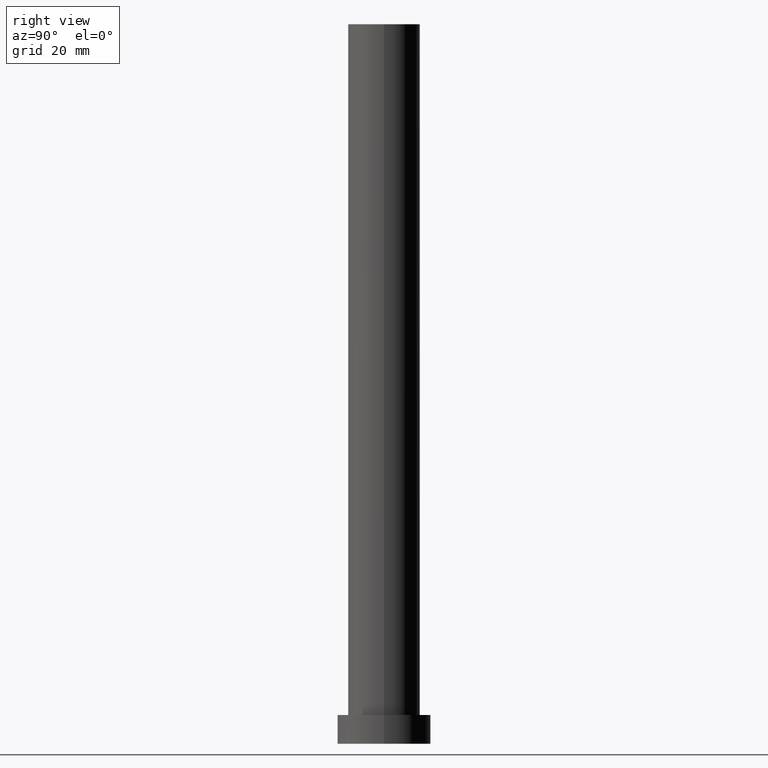
[diagram: clean part render]
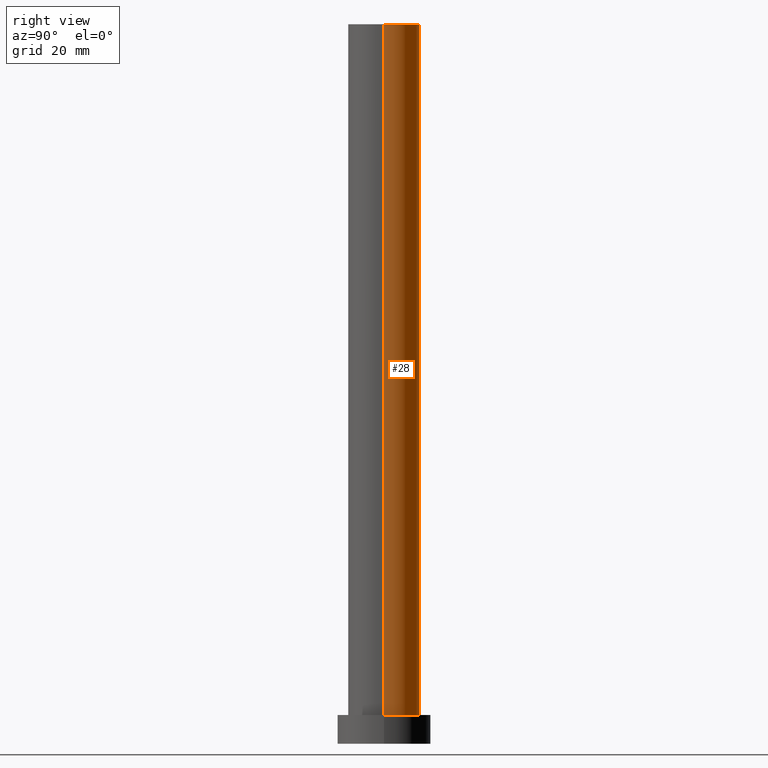
[diagram: same view with one face highlighted and labeled with its STEP entity id]
A machine part, right view. The second image highlights one B-rep face of the part: STEP entity #28.
In plain terms, the highlighted cylindrical surface (edge-blend (fillet) strip) has radius 10 mm, axis along (-0, -0, -1).
Its self-contained STEP definition (entity closure, byte-faithful):
#2 = ORIENTED_EDGE ( 'NONE', *, *, #141, .T. ) ;
#3 = EDGE_CURVE ( 'NONE', #122, #185, #15, .T. ) ;
#5 = DIRECTION ( 'NONE',  ( -0.000000000000000000, -0.000000000000000000, -1.000000000000000000 ) ) ;
#15 = CIRCLE ( 'NONE', #143, 10.00000000000000000 ) ;
#18 = VECTOR ( 'NONE', #79, 1000.000000000000000 ) ;
#20 = CARTESIAN_POINT ( 'NONE',  ( 10.00000000000000000, 1.224646799147353256E-15, 200.0000000000000000 ) ) ;
#28 = ADVANCED_FACE ( 'NONE', ( #133 ), #37, .T. ) ;
#32 = EDGE_CURVE ( 'NONE', #238, #185, #95, .T. ) ;
#36 = AXIS2_PLACEMENT_3D ( 'NONE', #110, #111, #193 ) ;
#37 = CYLINDRICAL_SURFACE ( 'NONE', #36, 10.00000000000000000 ) ;
#50 = ORIENTED_EDGE ( 'NONE', *, *, #32, .F. ) ;
#57 = EDGE_CURVE ( 'NONE', #126, #238, #157, .T. ) ;
#66 = CARTESIAN_POINT ( 'NONE',  ( 10.00000000000000000, 1.224646799147353256E-15, 8.000000000000000000 ) ) ;
#79 = DIRECTION ( 'NONE',  ( -0.000000000000000000, -0.000000000000000000, -1.000000000000000000 ) ) ;
#82 = DIRECTION ( 'NONE',  ( 1.000000000000000000, 0.000000000000000000, 0.000000000000000000 ) ) ;
#95 = LINE ( 'NONE', #114, #18 ) ;
#96 = CARTESIAN_POINT ( 'NONE',  ( 0.000000000000000000, 0.000000000000000000, 200.0000000000000000 ) ) ;
#102 = CARTESIAN_POINT ( 'NONE',  ( 0.000000000000000000, 0.000000000000000000, 8.000000000000000000 ) ) ;
#103 = CARTESIAN_POINT ( 'NONE',  ( 10.00000000000000000, 1.224646799147353256E-15, 200.0000000000000000 ) ) ;
#110 = CARTESIAN_POINT ( 'NONE',  ( 0.000000000000000000, 0.000000000000000000, 200.0000000000000000 ) ) ;
#111 = DIRECTION ( 'NONE',  ( -0.000000000000000000, -0.000000000000000000, -1.000000000000000000 ) ) ;
#114 = CARTESIAN_POINT ( 'NONE',  ( -10.00000000000000000, 0.000000000000000000, 200.0000000000000000 ) ) ;
#122 = VERTEX_POINT ( 'NONE', #66 ) ;
#126 = VERTEX_POINT ( 'NONE', #20 ) ;
#133 = FACE_OUTER_BOUND ( 'NONE', #168, .T. ) ;
#141 = EDGE_CURVE ( 'NONE', #126, #122, #239, .T. ) ;
#143 = AXIS2_PLACEMENT_3D ( 'NONE', #102, #153, #175 ) ;
#153 = DIRECTION ( 'NONE',  ( 0.000000000000000000, 0.000000000000000000, 1.000000000000000000 ) ) ;
#157 = CIRCLE ( 'NONE', #178, 10.00000000000000000 ) ;
#168 = EDGE_LOOP ( 'NONE', ( #224, #2, #244, #50 ) ) ;
#175 = DIRECTION ( 'NONE',  ( 1.000000000000000000, 0.000000000000000000, 0.000000000000000000 ) ) ;
#178 = AXIS2_PLACEMENT_3D ( 'NONE', #96, #251, #82 ) ;
#185 = VERTEX_POINT ( 'NONE', #222 ) ;
#193 = DIRECTION ( 'NONE',  ( -1.000000000000000000, 0.000000000000000000, 0.000000000000000000 ) ) ;
#222 = CARTESIAN_POINT ( 'NONE',  ( -10.00000000000000000, 0.000000000000000000, 8.000000000000000000 ) ) ;
#224 = ORIENTED_EDGE ( 'NONE', *, *, #57, .F. ) ;
#238 = VERTEX_POINT ( 'NONE', #241 ) ;
#239 = LINE ( 'NONE', #103, #252 ) ;
#241 = CARTESIAN_POINT ( 'NONE',  ( -10.00000000000000000, 0.000000000000000000, 200.0000000000000000 ) ) ;
#244 = ORIENTED_EDGE ( 'NONE', *, *, #3, .T. ) ;
#251 = DIRECTION ( 'NONE',  ( 0.000000000000000000, 0.000000000000000000, 1.000000000000000000 ) ) ;
#252 = VECTOR ( 'NONE', #5, 1000.000000000000000 ) ;